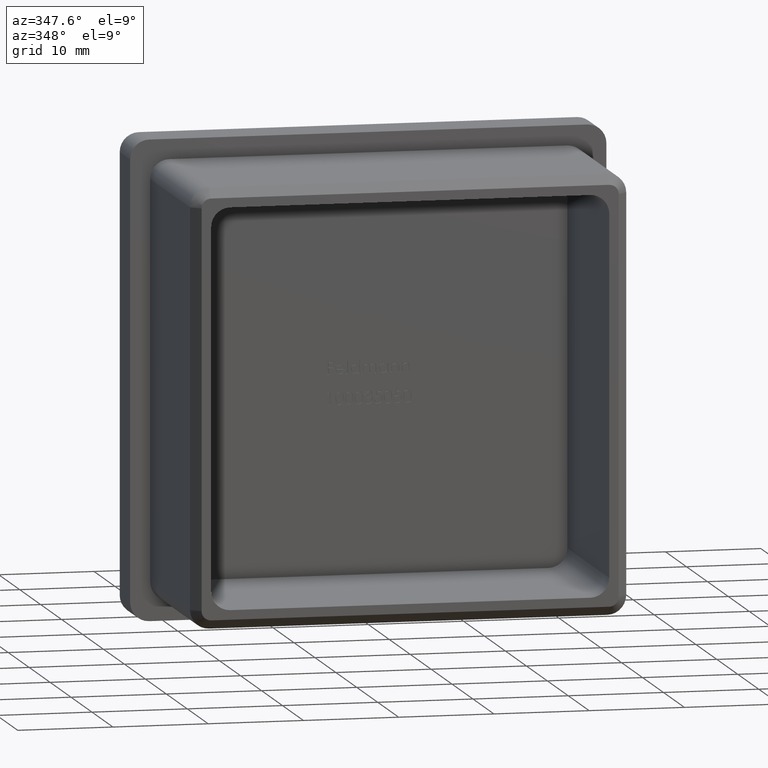
[diagram: clean part render]
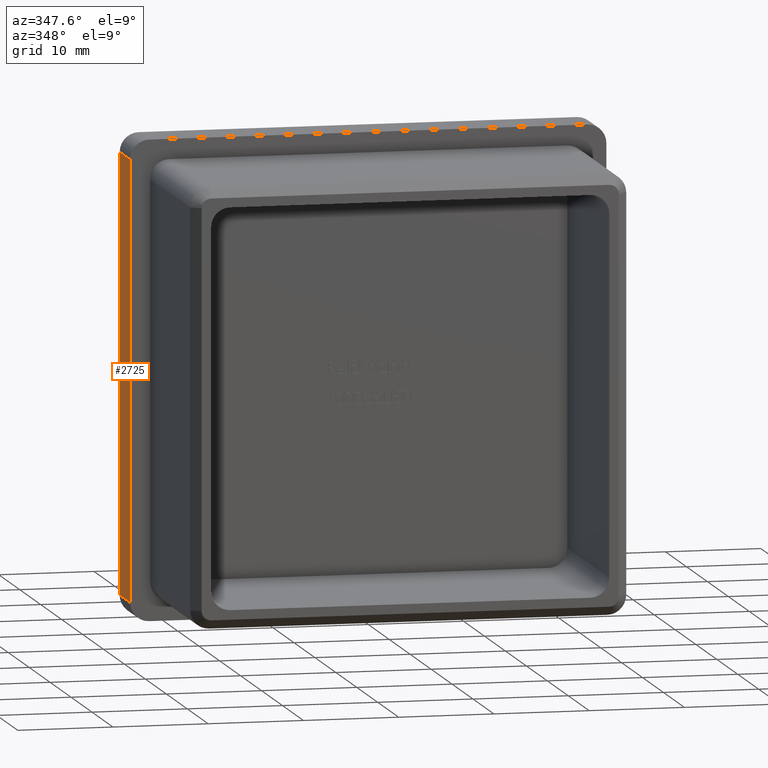
[diagram: same view with one face highlighted and labeled with its STEP entity id]
A machine part, auxiliary view. The second image highlights one B-rep face of the part: STEP entity #2725.
In plain terms, the highlighted planar face has unit normal (1, 0, -0).
Its self-contained STEP definition (entity closure, byte-faithful):
#49 = CARTESIAN_POINT ( 'NONE',  ( -25.00000000000000400, 5.000000000000000000, -24.99999999999999600 ) ) ;
#392 = ORIENTED_EDGE ( 'NONE', *, *, #2594, .F. ) ;
#1030 = PLANE ( 'NONE',  #6129 ) ;
#1135 = DIRECTION ( 'NONE',  ( 2.081668171172168500E-016, 0.0000000000000000000, 1.000000000000000000 ) ) ;
#1632 = EDGE_CURVE ( 'NONE', #10036, #11349, #10081, .T. ) ;
#2144 = ORIENTED_EDGE ( 'NONE', *, *, #13812, .T. ) ;
#2594 = EDGE_CURVE ( 'NONE', #6409, #11349, #5089, .T. ) ;
#2725 = ADVANCED_FACE ( 'NONE', ( #9874 ), #1030, .F. ) ;
#3158 = DIRECTION ( 'NONE',  ( -0.0000000000000000000, 1.000000000000000000, -0.0000000000000000000 ) ) ;
#4653 = VECTOR ( 'NONE', #5133, 1000.000000000000000 ) ;
#5089 = LINE ( 'NONE', #8373, #10260 ) ;
#5133 = DIRECTION ( 'NONE',  ( 2.081668171172168500E-016, 0.0000000000000000000, 1.000000000000000000 ) ) ;
#6129 = AXIS2_PLACEMENT_3D ( 'NONE', #49, #14127, #10699 ) ;
#6409 = VERTEX_POINT ( 'NONE', #10192 ) ;
#6800 = VECTOR ( 'NONE', #10546, 1000.000000000000000 ) ;
#7702 = EDGE_LOOP ( 'NONE', ( #392, #2144, #11023, #11231 ) ) ;
#8373 = CARTESIAN_POINT ( 'NONE',  ( -25.00000000000000400, 5.000000000000000000, -24.99999999999999600 ) ) ;
#8701 = EDGE_CURVE ( 'NONE', #11421, #10036, #15062, .T. ) ;
#8994 = CARTESIAN_POINT ( 'NONE',  ( -24.99999999999999300, 5.000000000000000000, 23.00000000000000400 ) ) ;
#9022 = CARTESIAN_POINT ( 'NONE',  ( -24.99999999999999300, 0.0000000000000000000, 23.00000000000000400 ) ) ;
#9082 = CARTESIAN_POINT ( 'NONE',  ( -25.00000000000000400, 0.0000000000000000000, -23.00000000000000000 ) ) ;
#9573 = LINE ( 'NONE', #10601, #6800 ) ;
#9874 = FACE_OUTER_BOUND ( 'NONE', #7702, .T. ) ;
#10036 = VERTEX_POINT ( 'NONE', #9022 ) ;
#10081 = LINE ( 'NONE', #13901, #10827 ) ;
#10192 = CARTESIAN_POINT ( 'NONE',  ( -25.00000000000000400, 5.000000000000000000, -23.00000000000000000 ) ) ;
#10260 = VECTOR ( 'NONE', #1135, 1000.000000000000000 ) ;
#10546 = DIRECTION ( 'NONE',  ( 0.0000000000000000000, -1.000000000000000000, 0.0000000000000000000 ) ) ;
#10601 = CARTESIAN_POINT ( 'NONE',  ( -25.00000000000000400, 5.000000000000000000, -23.00000000000000000 ) ) ;
#10699 = DIRECTION ( 'NONE',  ( -2.081668171172168500E-016, 0.0000000000000000000, -1.000000000000000000 ) ) ;
#10827 = VECTOR ( 'NONE', #3158, 1000.000000000000000 ) ;
#11023 = ORIENTED_EDGE ( 'NONE', *, *, #8701, .T. ) ;
#11231 = ORIENTED_EDGE ( 'NONE', *, *, #1632, .T. ) ;
#11349 = VERTEX_POINT ( 'NONE', #8994 ) ;
#11421 = VERTEX_POINT ( 'NONE', #9082 ) ;
#13812 = EDGE_CURVE ( 'NONE', #6409, #11421, #9573, .T. ) ;
#13901 = CARTESIAN_POINT ( 'NONE',  ( -24.99999999999999300, 5.000000000000000000, 23.00000000000000400 ) ) ;
#14127 = DIRECTION ( 'NONE',  ( 1.000000000000000000, 0.0000000000000000000, -2.081668171172168500E-016 ) ) ;
#14789 = CARTESIAN_POINT ( 'NONE',  ( -25.00000000000000400, 0.0000000000000000000, -24.99999999999999600 ) ) ;
#15062 = LINE ( 'NONE', #14789, #4653 ) ;